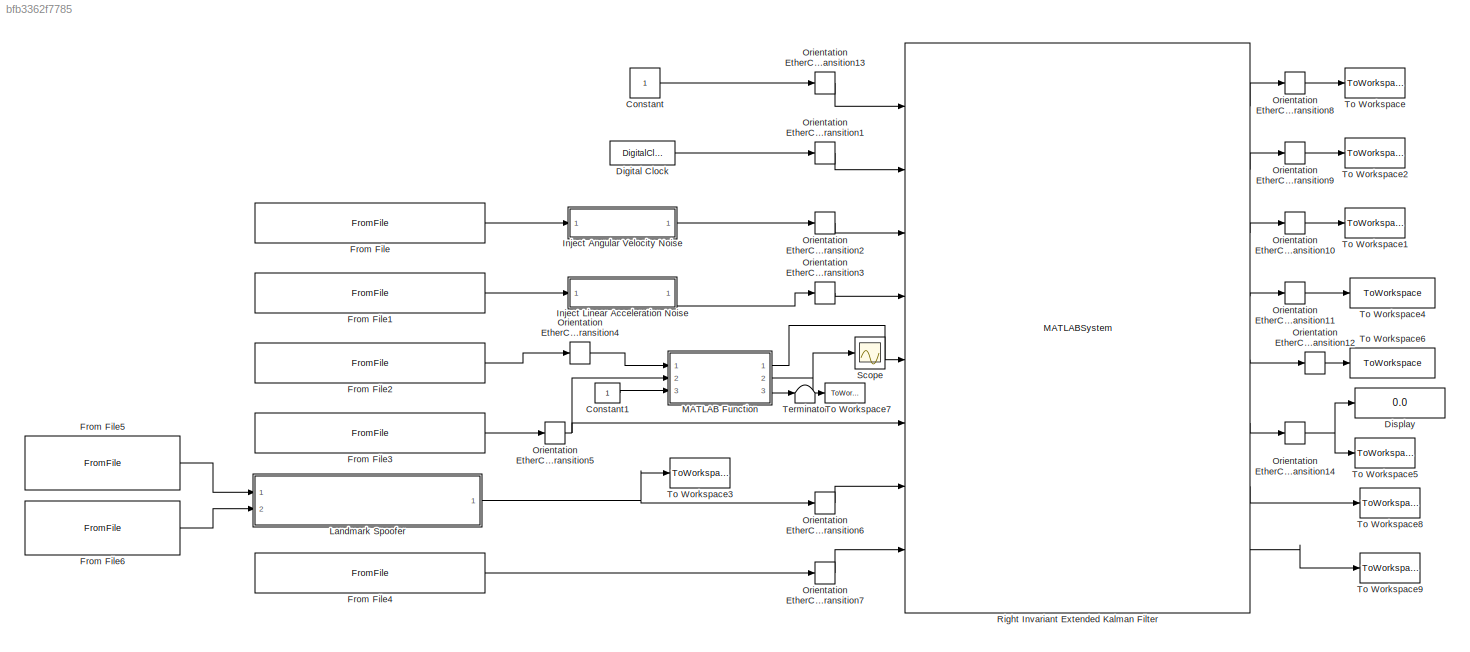
MODEL slx_bfb3362f7785
KIND model
CONFIG AbsTol = auto
CONFIG EnableMultiTasking = on
CONFIG FixedStep = 1e-5
CONFIG InitFcn = RIEKF_InitFcn;\n
CONFIG MaxStep = auto
CONFIG MinStep = auto
CONFIG RelTol = auto
CONFIG SampleTimeConstraint = Unconstrained
CONFIG Solver = ode23
CONFIG SolverName = ode23
CONFIG StartTime = 0
CONFIG StopTime = 10
BLOCK [Constant] Constant
BLOCK [Constant] Constant1
BLOCK [DigitalClock] Digital Clock
  SampleTime = EtherCat_SampleTime
BLOCK [Display] Display
  Decimation = 1
  Ports = [1]
BLOCK [FromFile] From File
  FileName = data/measurements/angular_velocity.mat
  SampleTime = 0
BLOCK [FromFile] From File1
  FileName = data/measurements/linear_acceleration.mat
  SampleTime = 0
BLOCK [FromFile] From File2
  FileName = data/measurements/encoders.mat
  SampleTime = 0
BLOCK [FromFile] From File3
  FileName = data/measurements/contact.mat
  SampleTime = 0
BLOCK [FromFile] From File4
  FileName = data/measurements/X_init.mat
  SampleTime = 0
BLOCK [FromFile] From File5
  FileName = data/ground_truth/position.mat
  SampleTime = EKF_SampleTime
BLOCK [FromFile] From File6
  FileName = data/ground_truth/orientation.mat
  SampleTime = EKF_SampleTime
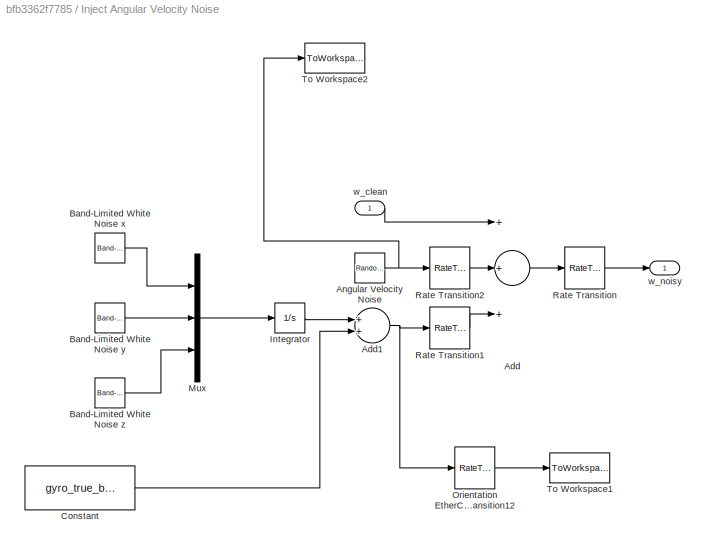
BLOCK [SubSystem] Inject Angular Velocity Noise
  Ports = [1, 1]
  RequestExecContextInheritance = off
  Variant = off
BLOCK [Sum] Inject Angular Velocity Noise/Add
  InputSameDT = off
  Inputs = +++
  OutDataTypeStr = Inherit: Inherit via internal rule
  Ports = [3, 1]
  SaturateOnIntegerOverflow = off
BLOCK [Sum] Inject Angular Velocity Noise/Add1
  InputSameDT = off
  OutDataTypeStr = Inherit: Inherit via internal rule
  Ports = [2, 1]
  SaturateOnIntegerOverflow = off
BLOCK [RandomNumber] Inject Angular Velocity Noise/Angular Velocity Noise
  Mean = [0;0;0]
  SampleTime = VectorNav_SampleTime
  Seed = [7;8;9]
  Variance = [gyro_true_noise_std(1)^2; gyro_true_noise_std(2)^2; gyro_true_noise_std(3)^2]
BLOCK [Reference] Inject Angular Velocity Noise/Band-Limited White Noise x  REF=simulink/Sources/Band-Limited
White Noise
  Ports = [0, 1]
  SourceBlock = simulink/Sources/Band-Limited\nWhite Noise
  SourceProductBaseCode = SL
  SourceProductName = Simulink
  SourceType = Band-Limited White Noise.
BLOCK [Reference] Inject Angular Velocity Noise/Band-Limited White Noise y  REF=simulink/Sources/Band-Limited
White Noise
  Ports = [0, 1]
  SourceBlock = simulink/Sources/Band-Limited\nWhite Noise
  SourceProductBaseCode = SL
  SourceProductName = Simulink
  SourceType = Band-Limited White Noise.
BLOCK [Reference] Inject Angular Velocity Noise/Band-Limited White Noise z  REF=simulink/Sources/Band-Limited
White Noise
  Ports = [0, 1]
  SourceBlock = simulink/Sources/Band-Limited\nWhite Noise
  SourceProductBaseCode = SL
  SourceProductName = Simulink
  SourceType = Band-Limited White Noise.
BLOCK [Constant] Inject Angular Velocity Noise/Constant
  Value = gyro_true_bias_init
BLOCK [Integrator] Inject Angular Velocity Noise/Integrator
  InitialCondition = [0;0;0]
  Ports = [1, 1]
BLOCK [Mux] Inject Angular Velocity Noise/Mux
  DisplayOption = bar
  Inputs = 3
  Ports = [3, 1]
BLOCK [RateTransition] Inject Angular Velocity Noise/Orientation EtherCAT Rate Transition12
  Deterministic = off
  OutPortSampleTime = EtherCat_SampleTime
BLOCK [RateTransition] Inject Angular Velocity Noise/Rate Transition
  OutPortSampleTime = EtherCat_SampleTime
BLOCK [RateTransition] Inject Angular Velocity Noise/Rate Transition1
  Deterministic = off
  OutPortSampleTime = EtherCat_SampleTime
BLOCK [RateTransition] Inject Angular Velocity Noise/Rate Transition2
  Deterministic = off
  OutPortSampleTime = EtherCat_SampleTime
BLOCK [ToWorkspace] Inject Angular Velocity Noise/To Workspace1
  FixptAsFi = on
  MaxDataPoints = inf
  Ports = [1]
  SampleTime = -1
  Save2DSignal = 3-D array (concatenate along third dimension)
  SaveFormat = Timeseries
  VariableName = gyro_bias
BLOCK [ToWorkspace] Inject Angular Velocity Noise/To Workspace2
  FixptAsFi = on
  MaxDataPoints = inf
  Ports = [1]
  SampleTime = -1
  Save2DSignal = 3-D array (concatenate along third dimension)
  SaveFormat = Structure With Time
  VariableName = gyro_noise
BLOCK [Inport] Inject Angular Velocity Noise/w_clean
  IconDisplay = Port number
BLOCK [Outport] Inject Angular Velocity Noise/w_noisy
  IconDisplay = Port number
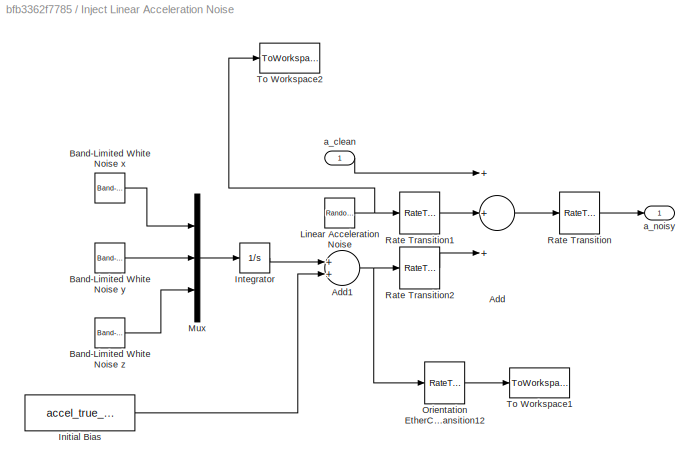
BLOCK [SubSystem] Inject Linear Acceleration Noise
  Ports = [1, 1]
  RequestExecContextInheritance = off
  Variant = off
BLOCK [Sum] Inject Linear Acceleration Noise/Add
  InputSameDT = off
  Inputs = +++
  OutDataTypeStr = Inherit: Inherit via internal rule
  Ports = [3, 1]
  SaturateOnIntegerOverflow = off
BLOCK [Sum] Inject Linear Acceleration Noise/Add1
  InputSameDT = off
  OutDataTypeStr = Inherit: Inherit via internal rule
  Ports = [2, 1]
  SaturateOnIntegerOverflow = off
BLOCK [Reference] Inject Linear Acceleration Noise/Band-Limited White Noise x  REF=simulink/Sources/Band-Limited
White Noise
  Ports = [0, 1]
  SourceBlock = simulink/Sources/Band-Limited\nWhite Noise
  SourceProductBaseCode = SL
  SourceProductName = Simulink
  SourceType = Band-Limited White Noise.
BLOCK [Reference] Inject Linear Acceleration Noise/Band-Limited White Noise y  REF=simulink/Sources/Band-Limited
White Noise
  Ports = [0, 1]
  SourceBlock = simulink/Sources/Band-Limited\nWhite Noise
  SourceProductBaseCode = SL
  SourceProductName = Simulink
  SourceType = Band-Limited White Noise.
BLOCK [Reference] Inject Linear Acceleration Noise/Band-Limited White Noise z  REF=simulink/Sources/Band-Limited
White Noise
  Ports = [0, 1]
  SourceBlock = simulink/Sources/Band-Limited\nWhite Noise
  SourceProductBaseCode = SL
  SourceProductName = Simulink
  SourceType = Band-Limited White Noise.
BLOCK [Constant] Inject Linear Acceleration Noise/Initial Bias
  Value = accel_true_bias_init
BLOCK [Integrator] Inject Linear Acceleration Noise/Integrator
  InitialCondition = [0;0;0]
  Ports = [1, 1]
BLOCK [RandomNumber] Inject Linear Acceleration Noise/Linear Acceleration Noise
  Mean = [0;0;0]
  SampleTime = VectorNav_SampleTime
  Seed = [10;11;12]
  Variance = [accel_true_noise_std(1)^2; accel_true_noise_std(2)^2; accel_true_noise_std(3)^2]
BLOCK [Mux] Inject Linear Acceleration Noise/Mux
  DisplayOption = bar
  Inputs = 3
  Ports = [3, 1]
BLOCK [RateTransition] Inject Linear Acceleration Noise/Orientation EtherCAT Rate Transition12
  Deterministic = off
  OutPortSampleTime = EtherCat_SampleTime
BLOCK [RateTransition] Inject Linear Acceleration Noise/Rate Transition
  OutPortSampleTime = EtherCat_SampleTime
BLOCK [RateTransition] Inject Linear Acceleration Noise/Rate Transition1
  Deterministic = off
  OutPortSampleTime = EtherCat_SampleTime
BLOCK [RateTransition] Inject Linear Acceleration Noise/Rate Transition2
  Deterministic = off
  OutPortSampleTime = EtherCat_SampleTime
BLOCK [ToWorkspace] Inject Linear Acceleration Noise/To Workspace1
  FixptAsFi = on
  MaxDataPoints = inf
  Ports = [1]
  SampleTime = -1
  Save2DSignal = 3-D array (concatenate along third dimension)
  SaveFormat = Timeseries
  VariableName = accel_bias
BLOCK [ToWorkspace] Inject Linear Acceleration Noise/To Workspace2
  FixptAsFi = on
  MaxDataPoints = inf
  Ports = [1]
  SampleTime = -1
  Save2DSignal = 3-D array (concatenate along third dimension)
  SaveFormat = Structure With Time
  VariableName = accel_noise
BLOCK [Inport] Inject Linear Acceleration Noise/a_clean
  IconDisplay = Port number
BLOCK [Outport] Inject Linear Acceleration Noise/a_noisy
  IconDisplay = Port number
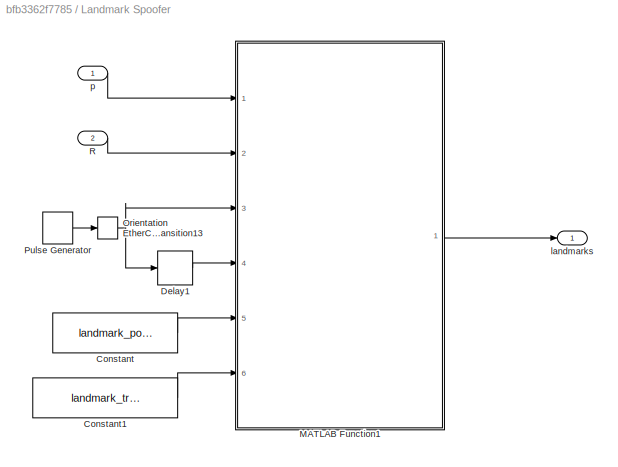
BLOCK [SubSystem] Landmark Spoofer
  Ports = [2, 1]
  RequestExecContextInheritance = off
  Variant = off
BLOCK [Constant] Landmark Spoofer/Constant
  Value = landmark_positions
BLOCK [Constant] Landmark Spoofer/Constant1
  Value = landmark_true_noise_std
BLOCK [Delay] Landmark Spoofer/Delay1
  DelayLength = 1
  InitialCondition = 0
  InputPortMap = u0
  Ports = [1, 1]
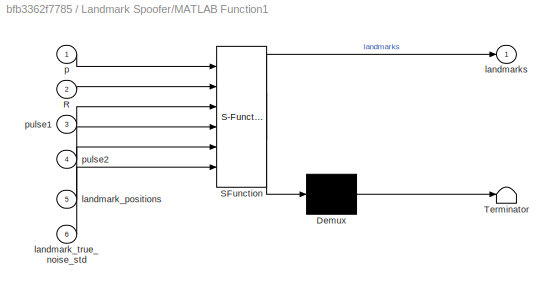
BLOCK [SubSystem] Landmark Spoofer/MATLAB Function1
  ErrorFcn = Stateflow.Translate.translate
  PermitHierarchicalResolution = ExplicitOnly
  Ports = [6, 1]
  RequestExecContextInheritance = off
  SFBlockType = MATLAB Function
  TreatAsAtomicUnit = on
  Variant = off
BLOCK [Demux] Landmark Spoofer/MATLAB Function1/ Demux 
  Outputs = 1
  Ports = [1, 1]
BLOCK [S-Function] Landmark Spoofer/MATLAB Function1/ SFunction 
  EnableBusSupport = on
  FunctionName = sf_sfun
  PortCounts = [6 2]
  Ports = [6, 2]
  SFcnIsStateOwnerBlock = off
  SFunctionDeploymentMode = off
  Tag = Stateflow S-Function RIEKF_test 1
BLOCK [Terminator] Landmark Spoofer/MATLAB Function1/ Terminator 
BLOCK [Inport] Landmark Spoofer/MATLAB Function1/R
  IconDisplay = Port number
  Port = 2
BLOCK [Inport] Landmark Spoofer/MATLAB Function1/landmark_positions
  IconDisplay = Port number
  Port = 5
BLOCK [Inport] Landmark Spoofer/MATLAB Function1/landmark_true_noise_std
  IconDisplay = Port number
  Port = 6
BLOCK [Outport] Landmark Spoofer/MATLAB Function1/landmarks
  IconDisplay = Port number
BLOCK [Inport] Landmark Spoofer/MATLAB Function1/p
  IconDisplay = Port number
BLOCK [Inport] Landmark Spoofer/MATLAB Function1/pulse1
  IconDisplay = Port number
  Port = 3
BLOCK [Inport] Landmark Spoofer/MATLAB Function1/pulse2
  IconDisplay = Port number
  Port = 4
BLOCK [RateTransition] Landmark Spoofer/Orientation EtherCAT Rate Transition13
  Deterministic = off
  OutPortSampleTime = EKF_SampleTime
BLOCK [DiscretePulseGenerator] Landmark Spoofer/Pulse Generator
  Period = landmark_measurement_frequency
  Ports = [0, 1]
  PulseType = Time based
  PulseWidth = 5
BLOCK [Inport] Landmark Spoofer/R
  IconDisplay = Port number
  Port = 2
BLOCK [Outport] Landmark Spoofer/landmarks
  IconDisplay = Port number
BLOCK [Inport] Landmark Spoofer/p
  IconDisplay = Port number
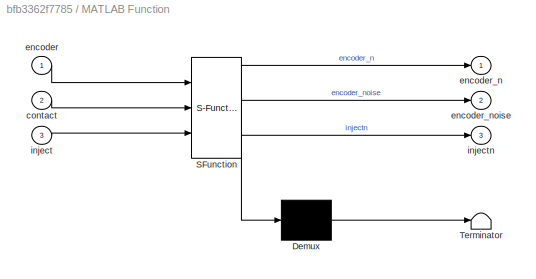
BLOCK [SubSystem] MATLAB Function
  ErrorFcn = Stateflow.Translate.translate
  PermitHierarchicalResolution = ExplicitOnly
  Ports = [3, 3]
  RequestExecContextInheritance = off
  SFBlockType = MATLAB Function
  TreatAsAtomicUnit = on
  Variant = off
BLOCK [Demux] MATLAB Function/ Demux 
  Outputs = 1
  Ports = [1, 1]
BLOCK [S-Function] MATLAB Function/ SFunction 
  EnableBusSupport = on
  FunctionName = sf_sfun
  PortCounts = [3 4]
  Ports = [3, 4]
  SFcnIsStateOwnerBlock = off
  SFunctionDeploymentMode = off
  Tag = Stateflow S-Function RIEKF_test 2
BLOCK [Terminator] MATLAB Function/ Terminator 
BLOCK [Inport] MATLAB Function/contact
  IconDisplay = Port number
  Port = 2
BLOCK [Inport] MATLAB Function/encoder
  IconDisplay = Port number
BLOCK [Outport] MATLAB Function/encoder_n
  IconDisplay = Port number
BLOCK [Outport] MATLAB Function/encoder_noise
  IconDisplay = Port number
  Port = 2
BLOCK [Inport] MATLAB Function/inject
  IconDisplay = Port number
  Port = 3
BLOCK [Outport] MATLAB Function/injectn
  IconDisplay = Port number
  Port = 3
BLOCK [RateTransition] Orientation EtherCAT Rate Transition1
  Deterministic = off
  OutPortSampleTime = EKF_SampleTime
BLOCK [RateTransition] Orientation EtherCAT Rate Transition10
  Deterministic = off
  OutPortSampleTime = EtherCat_SampleTime
BLOCK [RateTransition] Orientation EtherCAT Rate Transition11
  Deterministic = off
  OutPortSampleTime = EtherCat_SampleTime
BLOCK [RateTransition] Orientation EtherCAT Rate Transition12
  Deterministic = off
  OutPortSampleTime = EtherCat_SampleTime
BLOCK [RateTransition] Orientation EtherCAT Rate Transition13
  Deterministic = off
  OutPortSampleTime = EKF_SampleTime
BLOCK [RateTransition] Orientation EtherCAT Rate Transition14
  Deterministic = off
  OutPortSampleTime = EtherCat_SampleTime
BLOCK [RateTransition] Orientation EtherCAT Rate Transition2
  Deterministic = off
  OutPortSampleTime = EKF_SampleTime
BLOCK [RateTransition] Orientation EtherCAT Rate Transition3
  Deterministic = off
  OutPortSampleTime = EKF_SampleTime
BLOCK [RateTransition] Orientation EtherCAT Rate Transition4
  Deterministic = off
  OutPortSampleTime = EKF_SampleTime
BLOCK [RateTransition] Orientation EtherCAT Rate Transition5
  Deterministic = off
  OutPortSampleTime = EKF_SampleTime
BLOCK [RateTransition] Orientation EtherCAT Rate Transition6
  Deterministic = off
  OutPortSampleTime = EKF_SampleTime
BLOCK [RateTransition] Orientation EtherCAT Rate Transition7
  Deterministic = off
  OutPortSampleTime = EKF_SampleTime
BLOCK [RateTransition] Orientation EtherCAT Rate Transition8
  Deterministic = off
  OutPortSampleTime = EtherCat_SampleTime
BLOCK [RateTransition] Orientation EtherCAT Rate Transition9
  Deterministic = off
  OutPortSampleTime = EtherCat_SampleTime
BLOCK [MATLABSystem] Right Invariant Extended Kalman Filter
  MaskDisplay = disp('RIEKF');\nport_label('input',1,'enable');\nport_label('input',2,'t');\nport_label('input',3,'w');\nport_label('input',4,'a');\nport_label('input',5,'encoders');\nport_label('input',6,'contact');\nport_label('input',7,'landmarks');\nport_label('input',8,'X_init');\nport_label('output',1,'X');\nport_label('output',2,'theta');\nport_label('output',3,'P');\nport_label('output',4,'enabled');\nport_label('outp...<+120ch>
  MaskType = RIEKF
  Ports = [8, 8]
  SimulateUsing = Interpreted execution
  System = RIEKF
  accel_bias_init = accel_bias_init
  accel_bias_noise_std = accel_bias_noise_std
  accel_noise_std = accel_noise_std
  contact_noise_std = contact_noise_std
  ekf_update_enabled = ekf_update_enabled
  enable_kinematic_measurements = enable_kinematic_measurements
  enable_landmark_measurements = enable_landmark_measurements
  enable_static_landmarks = enable_static_landmarks
  encoder_noise_std = encoder_noise_std
  gyro_bias_init = gyro_bias_init
  gyro_bias_noise_std = gyro_bias_noise_std
  gyro_noise_std = gyro_noise_std
  landmark_noise_std = landmark_noise_std
  landmark_positions = landmark_positions
  prior_accel_bias_std = prior_accel_bias_std
  prior_base_pose_std = prior_base_pose_std
  prior_base_velocity_std = prior_base_velocity_std
  prior_contact_position_std = prior_contact_position_std
  prior_forward_kinematics_std = prior_forward_kinematics_std
  prior_gyro_bias_std = prior_gyro_bias_std
  static_bias_initialization = static_bias_initialization
BLOCK [Scope] Scope
  NumInputPorts = 1
  Ports = [1]
  ScopeSpecificationString = Simulink.scopes.TimeScopeBlockCfg('CurrentConfiguration', extmgr.ConfigurationSet(extmgr.Configuration('Core','General UI',true),extmgr.Configuration('Core','Source UI',true),extmgr.Configuration('Sources','WiredSimulink',true),extmgr.Configuration('Visuals','Time Domain',true,'SerializedDisplays',{struct('MinYLimReal','-0.28412','MaxYLimReal','0.30093','YLabelReal','','MinYLimMag','0.00000','MaxY...<+1869ch>
BLOCK [Terminator] Terminator
BLOCK [ToWorkspace] To Workspace
  FixptAsFi = on
  MaxDataPoints = inf
  Ports = [1]
  SampleTime = -1
  Save2DSignal = 3-D array (concatenate along third dimension)
  SaveFormat = Structure With Time
  VariableName = X
BLOCK [ToWorkspace] To Workspace1
  FixptAsFi = on
  MaxDataPoints = inf
  Ports = [1]
  SampleTime = -1
  Save2DSignal = 3-D array (concatenate along third dimension)
  SaveFormat = Structure With Time
  VariableName = P
BLOCK [ToWorkspace] To Workspace2
  FixptAsFi = on
  MaxDataPoints = inf
  Ports = [1]
  SampleTime = -1
  Save2DSignal = 3-D array (concatenate along third dimension)
  SaveFormat = Structure With Time
  VariableName = theta
BLOCK [ToWorkspace] To Workspace3
  FixptAsFi = on
  MaxDataPoints = inf
  Ports = [1]
  SampleTime = -1
  Save2DSignal = 3-D array (concatenate along third dimension)
  SaveFormat = Structure With Time
  VariableName = landmark_out
BLOCK [ToWorkspace] To Workspace4
  FixptAsFi = on
  MaxDataPoints = inf
  Ports = [1]
  SampleTime = -1
  Save2DSignal = 3-D array (concatenate along third dimension)
  SaveFormat = Structure With Time
  VariableName = enabled
BLOCK [ToWorkspace] To Workspace5
  FixptAsFi = on
  MaxDataPoints = inf
  Ports = [1]
  SampleTime = -1
  Save2DSignal = 3-D array (concatenate along third dimension)
  SaveFormat = Structure With Time
  VariableName = ikfiter
BLOCK [ToWorkspace] To Workspace6
  FixptAsFi = on
  MaxDataPoints = inf
  Ports = [1]
  SampleTime = -1
  Save2DSignal = 3-D array (concatenate along third dimension)
  SaveFormat = Structure With Time
  VariableName = landmark_ids
BLOCK [ToWorkspace] To Workspace7
  FixptAsFi = on
  MaxDataPoints = inf
  Ports = [1]
  SampleTime = -1
  Save2DSignal = 3-D array (concatenate along third dimension)
  SaveFormat = Structure With Time
  VariableName = indn
BLOCK [ToWorkspace] To Workspace8
  FixptAsFi = on
  MaxDataPoints = inf
  Ports = [1]
  SampleTime = -1
  Save2DSignal = 3-D array (concatenate along third dimension)
  SaveFormat = Structure With Time
  VariableName = ikfcx
BLOCK [ToWorkspace] To Workspace9
  FixptAsFi = on
  MaxDataPoints = inf
  Ports = [1]
  SampleTime = -1
  Save2DSignal = 3-D array (concatenate along third dimension)
  SaveFormat = Structure With Time
  VariableName = ikfcy
LINE Constant1:1 -> MATLAB Function:3
LINE Constant:1 -> Orientation EtherCAT Rate Transition13:1
LINE Digital Clock:1 -> Orientation EtherCAT Rate Transition1:1
LINE From File1:1 -> Inject Linear Acceleration Noise:1
LINE From File2:1 -> Orientation EtherCAT Rate Transition4:1
LINE From File3:1 -> Orientation EtherCAT Rate Transition5:1
LINE From File4:1 -> Orientation EtherCAT Rate Transition7:1
LINE From File5:1 -> Landmark Spoofer:1
LINE From File6:1 -> Landmark Spoofer:2
LINE From File:1 -> Inject Angular Velocity Noise:1
NET Inject Angular Velocity Noise/Add1:1 -> Inject Angular Velocity Noise/Orientation EtherCAT Rate Transition12:1, Inject Angular Velocity Noise/Rate Transition1:1
LINE Inject Angular Velocity Noise/Add:1 -> Inject Angular Velocity Noise/Rate Transition:1
NET Inject Angular Velocity Noise/Angular Velocity Noise:1 -> Inject Angular Velocity Noise/Rate Transition2:1, Inject Angular Velocity Noise/To Workspace2:1
LINE Inject Angular Velocity Noise/Band-Limited White Noise x:1 -> Inject Angular Velocity Noise/Mux:1
LINE Inject Angular Velocity Noise/Band-Limited White Noise y:1 -> Inject Angular Velocity Noise/Mux:2
LINE Inject Angular Velocity Noise/Band-Limited White Noise z:1 -> Inject Angular Velocity Noise/Mux:3
LINE Inject Angular Velocity Noise/Constant:1 -> Inject Angular Velocity Noise/Add1:2
LINE Inject Angular Velocity Noise/Integrator:1 -> Inject Angular Velocity Noise/Add1:1
LINE Inject Angular Velocity Noise/Mux:1 -> Inject Angular Velocity Noise/Integrator:1
LINE Inject Angular Velocity Noise/Orientation EtherCAT Rate Transition12:1 -> Inject Angular Velocity Noise/To Workspace1:1
LINE Inject Angular Velocity Noise/Rate Transition1:1 -> Inject Angular Velocity Noise/Add:3
LINE Inject Angular Velocity Noise/Rate Transition2:1 -> Inject Angular Velocity Noise/Add:2
LINE Inject Angular Velocity Noise/Rate Transition:1 -> Inject Angular Velocity Noise/w_noisy:1
LINE Inject Angular Velocity Noise/w_clean:1 -> Inject Angular Velocity Noise/Add:1
LINE Inject Angular Velocity Noise:1 -> Orientation EtherCAT Rate Transition2:1
NET Inject Linear Acceleration Noise/Add1:1 -> Inject Linear Acceleration Noise/Orientation EtherCAT Rate Transition12:1, Inject Linear Acceleration Noise/Rate Transition2:1
LINE Inject Linear Acceleration Noise/Add:1 -> Inject Linear Acceleration Noise/Rate Transition:1
LINE Inject Linear Acceleration Noise/Band-Limited White Noise x:1 -> Inject Linear Acceleration Noise/Mux:1
LINE Inject Linear Acceleration Noise/Band-Limited White Noise y:1 -> Inject Linear Acceleration Noise/Mux:2
LINE Inject Linear Acceleration Noise/Band-Limited White Noise z:1 -> Inject Linear Acceleration Noise/Mux:3
LINE Inject Linear Acceleration Noise/Initial Bias:1 -> Inject Linear Acceleration Noise/Add1:2
LINE Inject Linear Acceleration Noise/Integrator:1 -> Inject Linear Acceleration Noise/Add1:1
NET Inject Linear Acceleration Noise/Linear Acceleration Noise:1 -> Inject Linear Acceleration Noise/Rate Transition1:1, Inject Linear Acceleration Noise/To Workspace2:1
LINE Inject Linear Acceleration Noise/Mux:1 -> Inject Linear Acceleration Noise/Integrator:1
LINE Inject Linear Acceleration Noise/Orientation EtherCAT Rate Transition12:1 -> Inject Linear Acceleration Noise/To Workspace1:1
LINE Inject Linear Acceleration Noise/Rate Transition1:1 -> Inject Linear Acceleration Noise/Add:2
LINE Inject Linear Acceleration Noise/Rate Transition2:1 -> Inject Linear Acceleration Noise/Add:3
LINE Inject Linear Acceleration Noise/Rate Transition:1 -> Inject Linear Acceleration Noise/a_noisy:1
LINE Inject Linear Acceleration Noise/a_clean:1 -> Inject Linear Acceleration Noise/Add:1
LINE Inject Linear Acceleration Noise:1 -> Orientation EtherCAT Rate Transition3:1
LINE Landmark Spoofer/Constant1:1 -> Landmark Spoofer/MATLAB Function1:6
LINE Landmark Spoofer/Constant:1 -> Landmark Spoofer/MATLAB Function1:5
LINE Landmark Spoofer/Delay1:1 -> Landmark Spoofer/MATLAB Function1:4
LINE Landmark Spoofer/MATLAB Function1:1 -> Landmark Spoofer/landmarks:1
NET Landmark Spoofer/Orientation EtherCAT Rate Transition13:1 -> Landmark Spoofer/Delay1:1, Landmark Spoofer/MATLAB Function1:3
LINE Landmark Spoofer/Pulse Generator:1 -> Landmark Spoofer/Orientation EtherCAT Rate Transition13:1
LINE Landmark Spoofer/R:1 -> Landmark Spoofer/MATLAB Function1:2
LINE Landmark Spoofer/p:1 -> Landmark Spoofer/MATLAB Function1:1
NET Landmark Spoofer:1 -> Orientation EtherCAT Rate Transition6:1, To Workspace3:1
LINE MATLAB Function:1 -> Right Invariant Extended Kalman Filter:5
NET MATLAB Function:2 -> Scope:1, To Workspace7:1
LINE MATLAB Function:3 -> Terminator:1
LINE Orientation EtherCAT Rate Transition10:1 -> To Workspace1:1
LINE Orientation EtherCAT Rate Transition11:1 -> To Workspace4:1
LINE Orientation EtherCAT Rate Transition12:1 -> To Workspace6:1
LINE Orientation EtherCAT Rate Transition13:1 -> Right Invariant Extended Kalman Filter:1
NET Orientation EtherCAT Rate Transition14:1 -> Display:1, To Workspace5:1
LINE Orientation EtherCAT Rate Transition1:1 -> Right Invariant Extended Kalman Filter:2
LINE Orientation EtherCAT Rate Transition2:1 -> Right Invariant Extended Kalman Filter:3
LINE Orientation EtherCAT Rate Transition3:1 -> Right Invariant Extended Kalman Filter:4
LINE Orientation EtherCAT Rate Transition4:1 -> MATLAB Function:1
NET Orientation EtherCAT Rate Transition5:1 -> MATLAB Function:2, Right Invariant Extended Kalman Filter:6
LINE Orientation EtherCAT Rate Transition6:1 -> Right Invariant Extended Kalman Filter:7
LINE Orientation EtherCAT Rate Transition7:1 -> Right Invariant Extended Kalman Filter:8
LINE Orientation EtherCAT Rate Transition8:1 -> To Workspace:1
LINE Orientation EtherCAT Rate Transition9:1 -> To Workspace2:1
LINE Right Invariant Extended Kalman Filter:1 -> Orientation EtherCAT Rate Transition8:1
LINE Right Invariant Extended Kalman Filter:2 -> Orientation EtherCAT Rate Transition9:1
LINE Right Invariant Extended Kalman Filter:3 -> Orientation EtherCAT Rate Transition10:1
LINE Right Invariant Extended Kalman Filter:4 -> Orientation EtherCAT Rate Transition11:1
LINE Right Invariant Extended Kalman Filter:5 -> Orientation EtherCAT Rate Transition12:1
LINE Right Invariant Extended Kalman Filter:6 -> Orientation EtherCAT Rate Transition14:1
LINE Right Invariant Extended Kalman Filter:7 -> To Workspace8:1
LINE Right Invariant Extended Kalman Filter:8 -> To Workspace9:1
note: NET lines group one-source signal fan-out (src -> all destinations, sorted); 1:1 wires keep LINE
CHART Landmark Spoofer/MATLAB Function1 states=1 transitions=1
  STATE_LABEL 'eML_blk_kernel()'
  STATE_LABEL 'SCRIPT:\nfunction landmarks = SpoofLandmarks(p, R, pulse1, pulse2, landmark_positions, landmark_true_noise_std)\n\n% Trigger of rising edge of pulse\nif pulse1 && ~pulse2\n    enable = true;\nelse\n    enable = false;\nend\n\n% Initialize landmarks\nlandmarks = [];\n\n% Compute landmark measurements\nif enable\n    % Compute World to IMU rotation matrix\n    %R = Angles.Quaternion_to_Rotation(orientation([2;3;4;1...<+479ch>'
CHART MATLAB Function states=1 transitions=1
  STATE_LABEL 'eML_blk_kernel()'
  STATE_LABEL 'SCRIPT:\nfunction [encoder_n,encoder_noise,injectn] = fcn(encoder,contact,inject)\n\n    encoder_noise_std=0*deg2rad(0.5)*ones(14,1);\n    if((contact(2)>0.1&&contact(2)<0.9)||(contact(1)>0.1&&contact(1)<0.9))\n        injectn=1;\n        encoder_noise_std=inject*2*deg2rad(0.5)*ones(14,1);\n    else\n        injectn=0;\n    end\n    encoder_noise=encoder_noise_std.*randn(1,1);\n    encoder_n=encoder+encoder_...<+20ch>'
